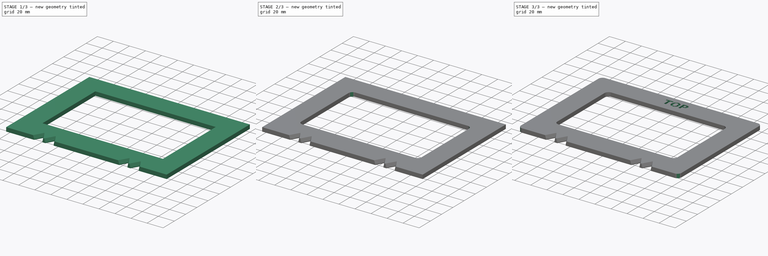
[diagram: build sequence overview — one tinted view per stage of 3, left to right]
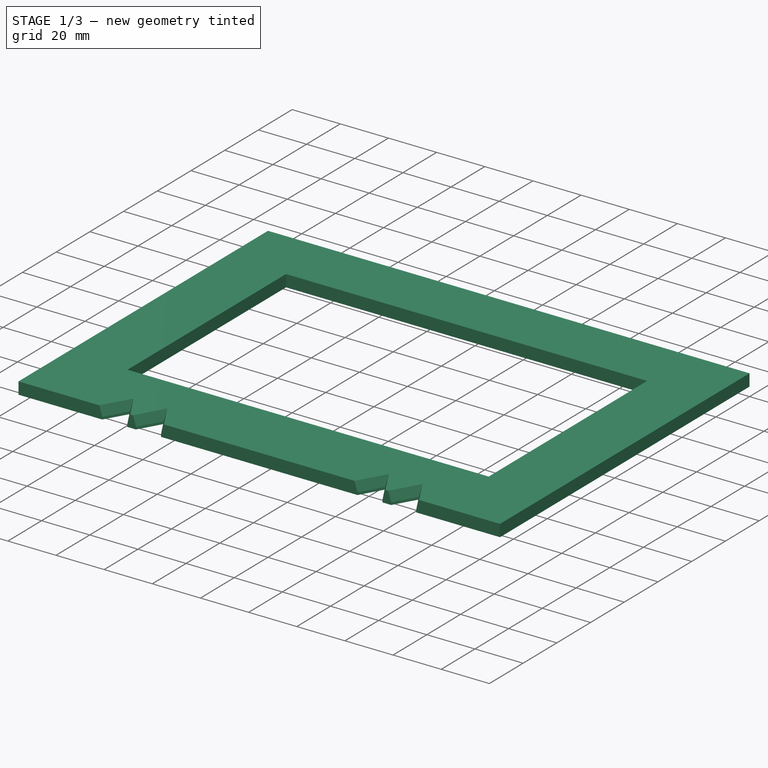
[diagram: stage 1 of 3 — iso view after this stage's code; geometry added in this stage tinted green]
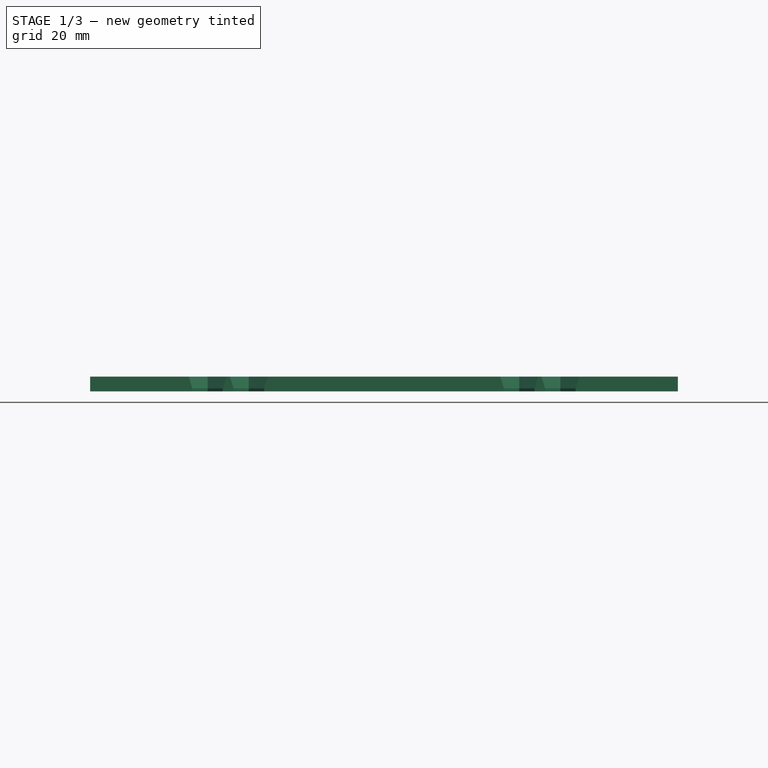
[diagram: stage 1 of 3 — front view after this stage's code; geometry added in this stage tinted green]
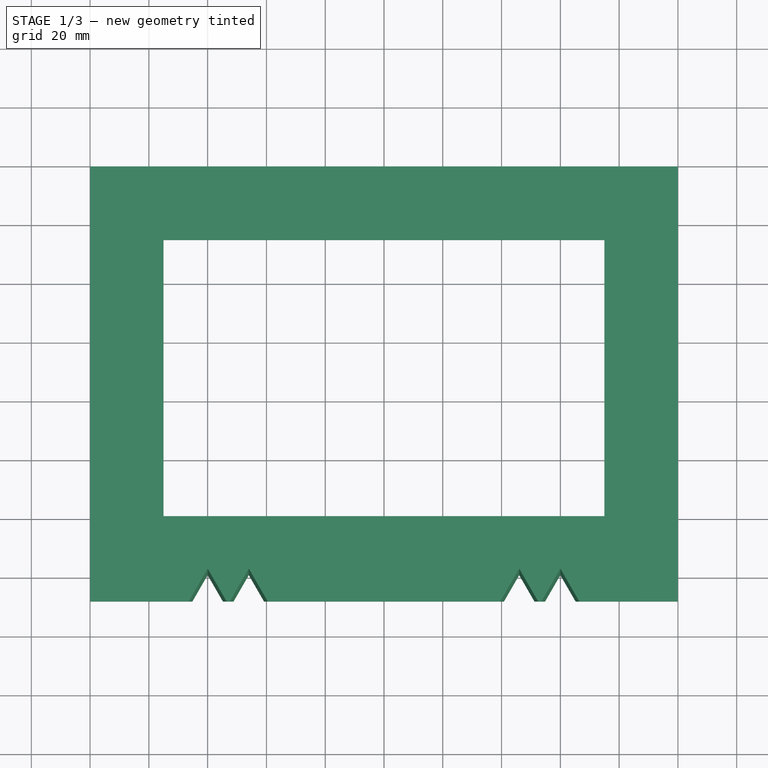
[diagram: stage 1 of 3 — top view after this stage's code; geometry added in this stage tinted green]
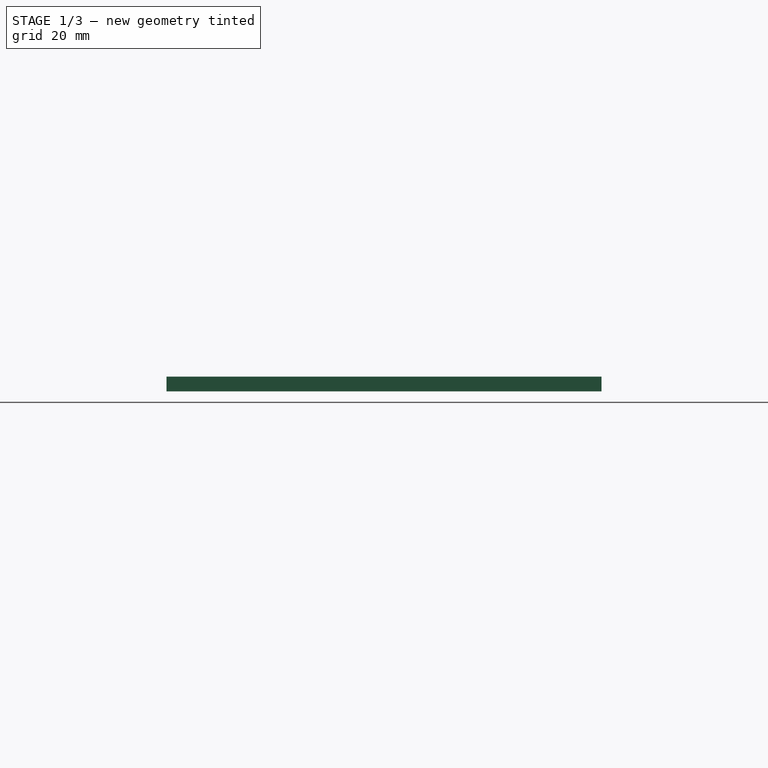
[diagram: stage 1 of 3 — right view after this stage's code; geometry added in this stage tinted green]
FCSTD DOCUMENT  (FreeCAD 0.19R24276 (Git))
Label: Radio brackets
License: All rights reserved
LicenseURL: http://en.wikipedia.org/wiki/All_rights_reserved
objects: PartDesign::Fillet×2, Sketcher::SketchObject×1, PartDesign::Pad×1, Part::Part2DObjectPython×1, PartDesign::Chamfer×1, PartDesign::ShapeBinder×1, PartDesign::Pocket×1, PartDesign::Body×1
note: 14 computed .brp shape members not serialized (recipe doc carries the construction recipe); baked Part::Feature solids carry a one-line shape summary decoded from their .brp

FEATURE [Sketcher::SketchObject] Sketch
  FullyConstrained = true
  MapMode = 5
  Support = -> [XY_Plane]
  sketch-geometry (20):
    g0: LineSegment StartX=0 StartY=0 StartZ=0 EndX=200 EndY=0 EndZ=0
    g1: LineSegment StartX=200 StartY=0 StartZ=0 EndX=200 EndY=-148 EndZ=0
    g2: LineSegment StartX=59.1962 StartY=-148 StartZ=0 EndX=54 EndY=-139 EndZ=0
    g3: LineSegment StartX=54 StartY=-139 StartZ=0 EndX=48.8038 EndY=-148 EndZ=0
    g4: LineSegment StartX=48.8038 StartY=-148 StartZ=0 EndX=45.1962 EndY=-148 EndZ=0
    g5: LineSegment StartX=45.1962 StartY=-148 StartZ=0 EndX=40 EndY=-139 EndZ=0
    g6: LineSegment StartX=40 StartY=-139 StartZ=0 EndX=34.8038 EndY=-148 EndZ=0
    g7: LineSegment StartX=34.8038 StartY=-148 StartZ=0 EndX=0 EndY=-148 EndZ=0
    g8: LineSegment StartX=0 StartY=-148 StartZ=0 EndX=0 EndY=0 EndZ=0
    g9: LineSegment StartX=165.196 StartY=-148 StartZ=0 EndX=160 EndY=-139 EndZ=0
    g10: LineSegment StartX=160 StartY=-139 StartZ=0 EndX=154.804 EndY=-148 EndZ=0
    g11: LineSegment StartX=154.804 StartY=-148 StartZ=0 EndX=151.196 EndY=-148 EndZ=0
    g12: LineSegment StartX=151.196 StartY=-148 StartZ=0 EndX=146 EndY=-139 EndZ=0
    g13: LineSegment StartX=146 StartY=-139 StartZ=0 EndX=140.804 EndY=-148 EndZ=0
    g14: LineSegment StartX=140.804 StartY=-148 StartZ=0 EndX=59.1962 EndY=-148 EndZ=0
    g15: LineSegment StartX=165.196 StartY=-148 StartZ=0 EndX=200 EndY=-148 EndZ=0
    g16: LineSegment StartX=25 StartY=-25 StartZ=0 EndX=175 EndY=-25 EndZ=0
    g17: LineSegment StartX=175 StartY=-25 StartZ=0 EndX=175 EndY=-119 EndZ=0
    g18: LineSegment StartX=175 StartY=-119 StartZ=0 EndX=25 EndY=-119 EndZ=0
    g19: LineSegment StartX=25 StartY=-119 StartZ=0 EndX=25 EndY=-25 EndZ=0
  constraints (59):
    c: Coincident(g-1,g0)
    c: PointOnObject(g0,g-1)
    c: Coincident(g0,g1)
    c: Vertical(g1)
    c: Coincident(g2,g3)
    c: Coincident(g3,g4)
    c: Horizontal(g4)
    c: Coincident(g4,g5)
    c: Coincident(g5,g6)
    c: Coincident(g6,g7)
    c: PointOnObject(g7,g-2)
    c: Horizontal(g7)
    c: Coincident(g7,g8)
    c: Coincident(g8,g0)
    c: Horizontal(g6,g4)
    c: Horizontal(g4,g2)
    c: Horizontal(g5,g2)
    c: DistanceX(g7,g5) = 40
    c: Angle(g6,g5) = 1.0472
    c: Angle(g3,g2) = 1.0472
    c: Equal(g6,g5)
    c: Equal(g5,g3)
    c: DistanceY(g5,g0) = 139
    c: DistanceY(g7,g5) = 9
    c: Coincident(g9,g10)
    c: Coincident(g10,g11)
    c: Horizontal(g11)
    c: Coincident(g11,g12)
    c: Coincident(g12,g13)
    c: Coincident(g13,g14)
    c: Horizontal(g14)
    c: Horizontal(g13,g11)
    c: Horizontal(g11,g9)
    c: Horizontal(g12,g9)
    c: Angle(g13,g12) = 1.0472
    c: Angle(g10,g9) = 1.0472
    c: Equal(g13,g12)
    c: Equal(g12,g10)
    c: Coincident(g14,g2)
    c: Horizontal(g12,g2)
    c: DistanceX(g7,g2) = 54
    c: DistanceX(g7,g9) = 160
    c: DistanceX(g7,g12) = 146
    c: Coincident(g15,g9)
    c: Coincident(g15,g1)
    c: Horizontal(g15)
    c: DistanceX(g9,g1) = 40
    c: Coincident(g16,g17)
    c: Coincident(g17,g18)
    c: Coincident(g18,g19)
    c: Coincident(g19,g16)
    c: Horizontal(g16)
    c: Horizontal(g18)
    c: Vertical(g17)
    c: Vertical(g19)
    c: DistanceX(g0,g16) = 25
    c: DistanceX(g16,g0) = 25
    c: DistanceY(g16,g0) = 25
    c: DistanceY(g9,g17) = 20
FEATURE [PartDesign::Pad] Pad
  Direction = (1,1,1)
  Length = 5
  Length2 = 100
  Profile = -> Sketch
  Type = 0
FEATURE [Part::Part2DObjectPython] ShapeString  # Draft 2D object (typed FeaturePython)
  FontFile = <path>
  Placement = pos=(86,-16,6) rot=(0,0,1;0rad)
  Size = 10
  String = TOP
  Tracking = 0
FEATURE [PartDesign::Chamfer] Chamfer
  Angle = 15
  Base = -> Pad [Edge34,Edge31,Edge25,Edge22,Edge16,Edge13,Edge7,Edge4]
  BaseFeature = -> Pad
  ChamferType = 2
  FlipDirection = false
  Size = 4
  Size2 = 1
  SupportTransform = false
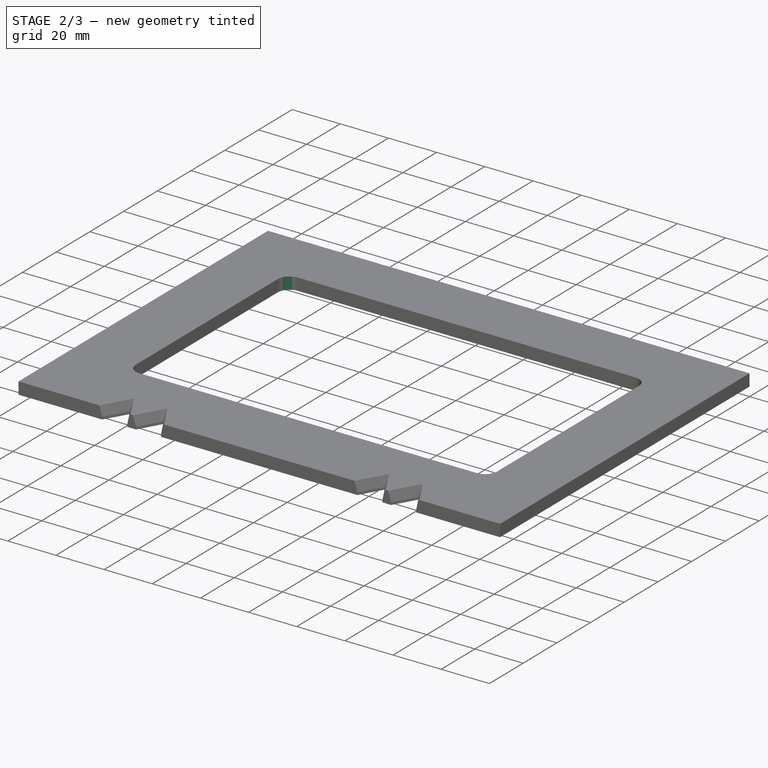
[diagram: stage 2 of 3 — iso view after this stage's code; geometry added in this stage tinted green]
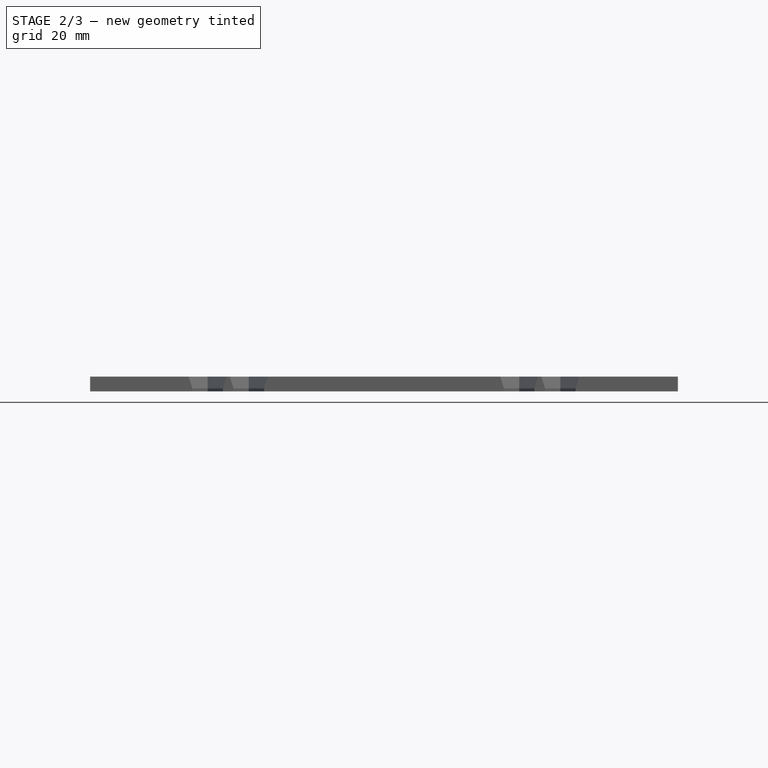
[diagram: stage 2 of 3 — front view after this stage's code; geometry added in this stage tinted green]
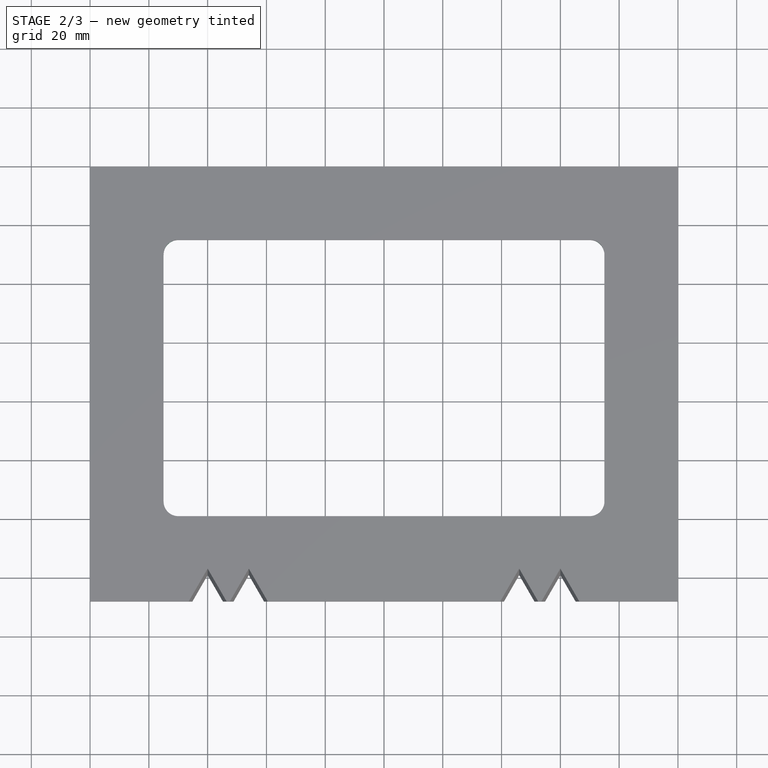
[diagram: stage 2 of 3 — top view after this stage's code; geometry added in this stage tinted green]
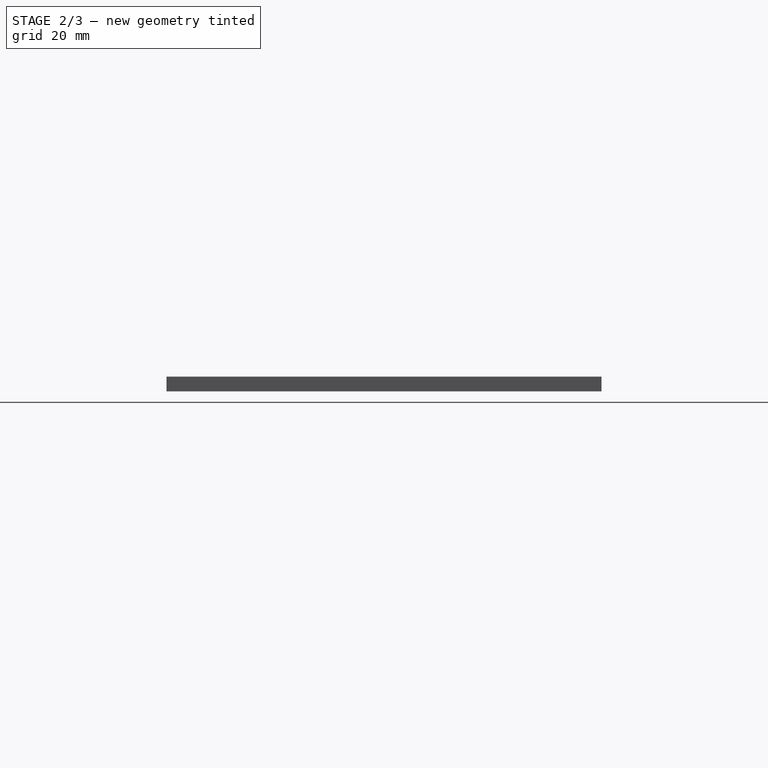
[diagram: stage 2 of 3 — right view after this stage's code; geometry added in this stage tinted green]
FEATURE [PartDesign::Fillet] Fillet
  Base = -> Chamfer [Edge75,Edge76,Edge77,Edge74]
  BaseFeature = -> Chamfer
  Radius = 5
  SupportTransform = false
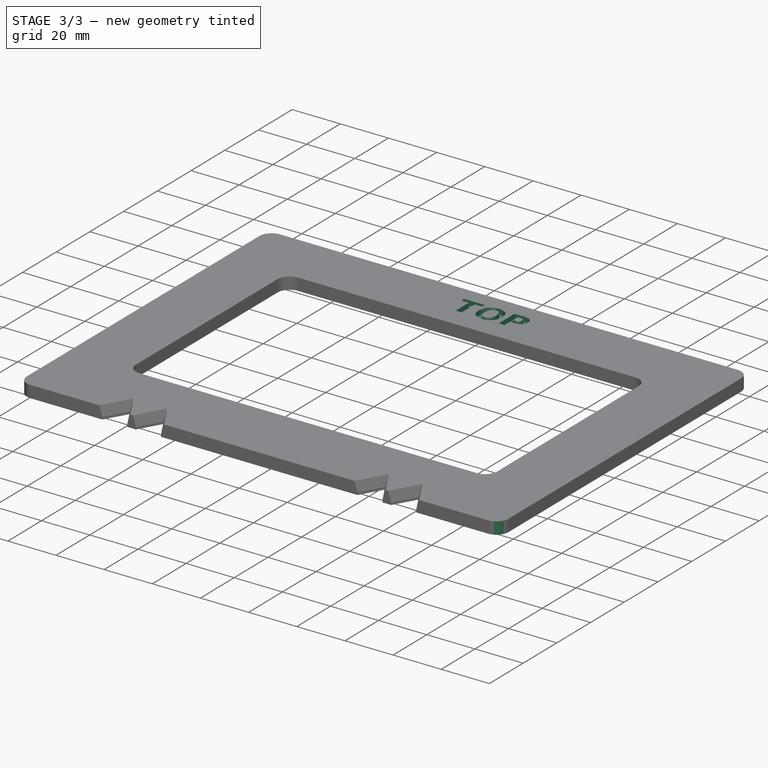
[diagram: stage 3 of 3 — iso view after this stage's code; geometry added in this stage tinted green]
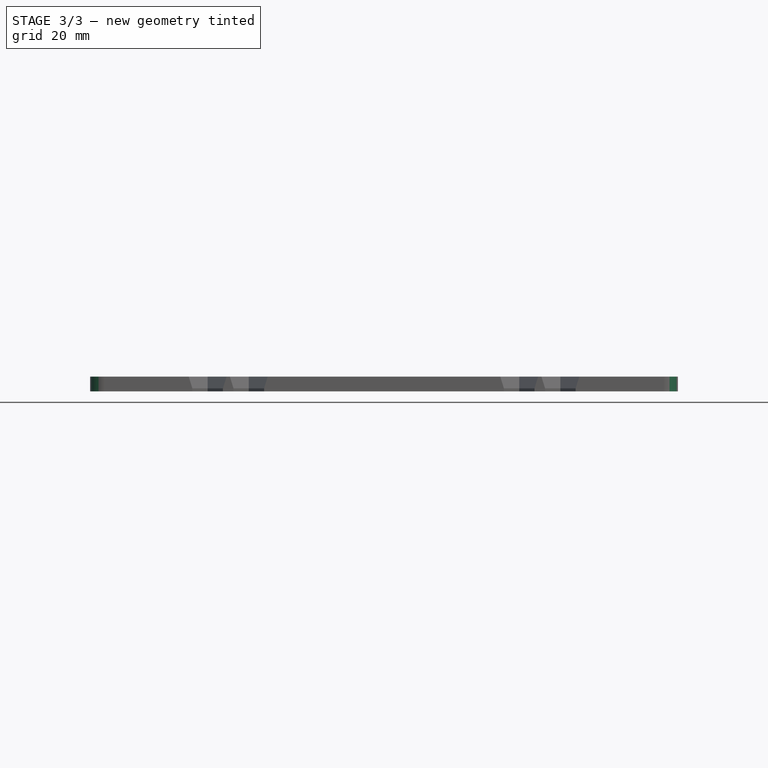
[diagram: stage 3 of 3 — front view after this stage's code; geometry added in this stage tinted green]
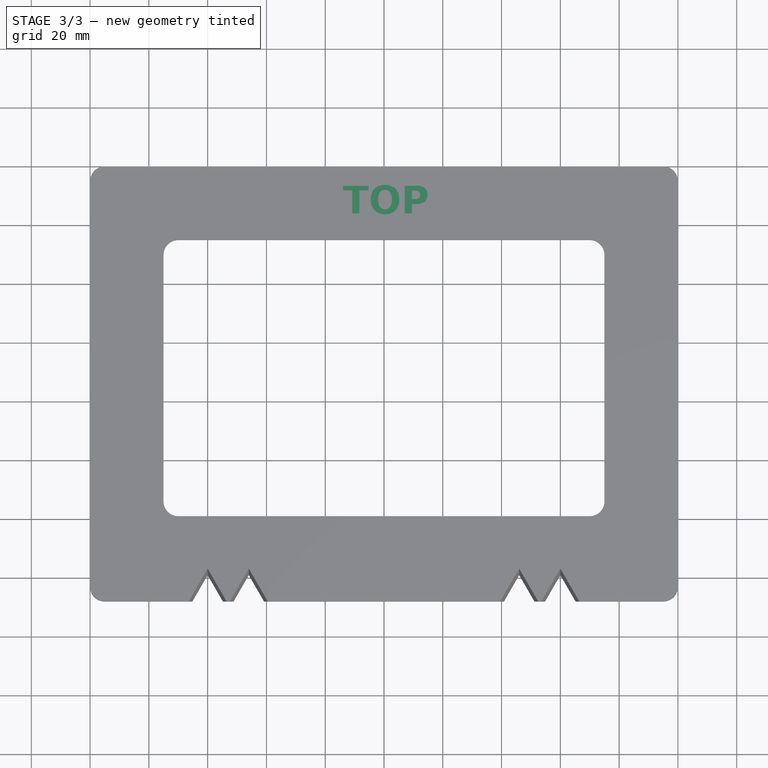
[diagram: stage 3 of 3 — top view after this stage's code; geometry added in this stage tinted green]
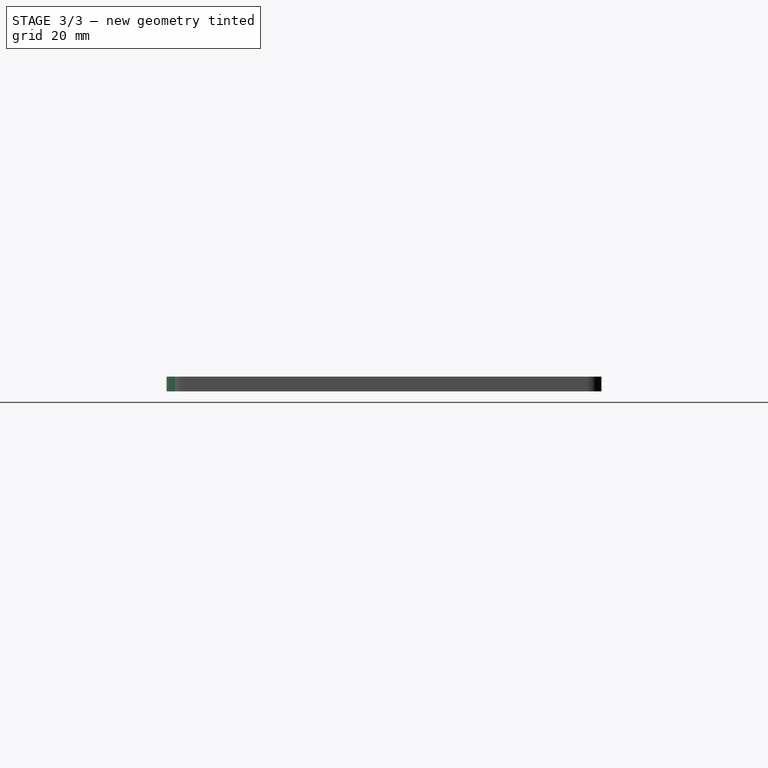
[diagram: stage 3 of 3 — right view after this stage's code; geometry added in this stage tinted green]
FEATURE [PartDesign::Fillet] Fillet001
  Base = -> Fillet [Edge75,Edge73,Edge77,Edge72]
  BaseFeature = -> Fillet
  Radius = 5
  SupportTransform = false
FEATURE [PartDesign::ShapeBinder] ShapeBinder
  Placement = pos=(86,-16,6) rot=(0,0,1;0rad)
  Support = -> [ShapeString]
  TraceSupport = false
FEATURE [PartDesign::Pocket] Pocket
  BaseFeature = -> Fillet001
  Length = 3
  Length2 = 100
  Profile = -> ShapeBinder
  Type = 0
FEATURE [PartDesign::Body] Body
  Group = -> [Sketch,Pad,Chamfer,Fillet,Fillet001,ShapeBinder,Pocket]
  Origin = -> Origin
  Tip = -> Pocket
note: 1 file-system path scrubbed to <path> (originals preserved in the JSON sidecar)
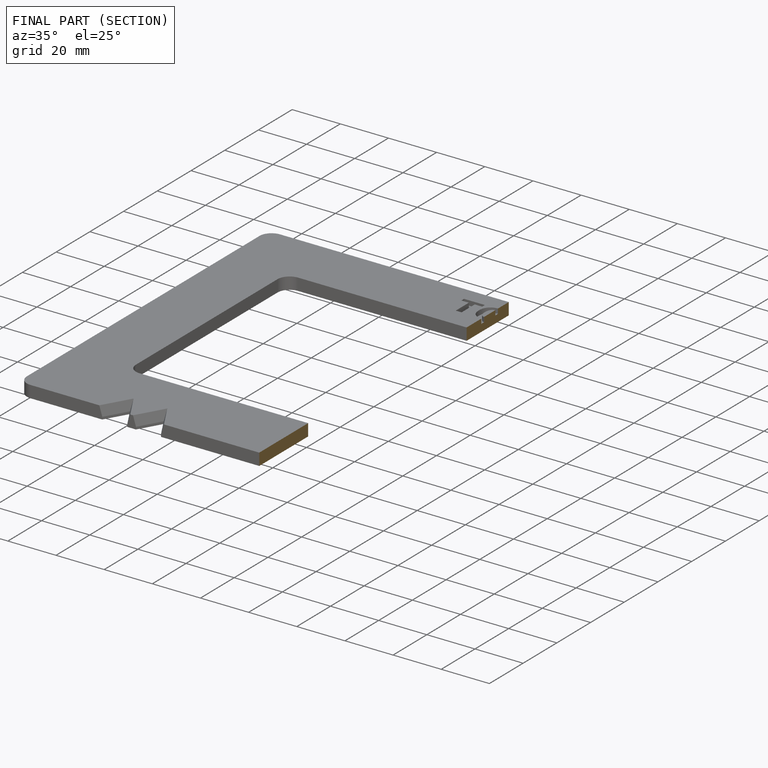
[diagram: finished part — half-section view (interior)]
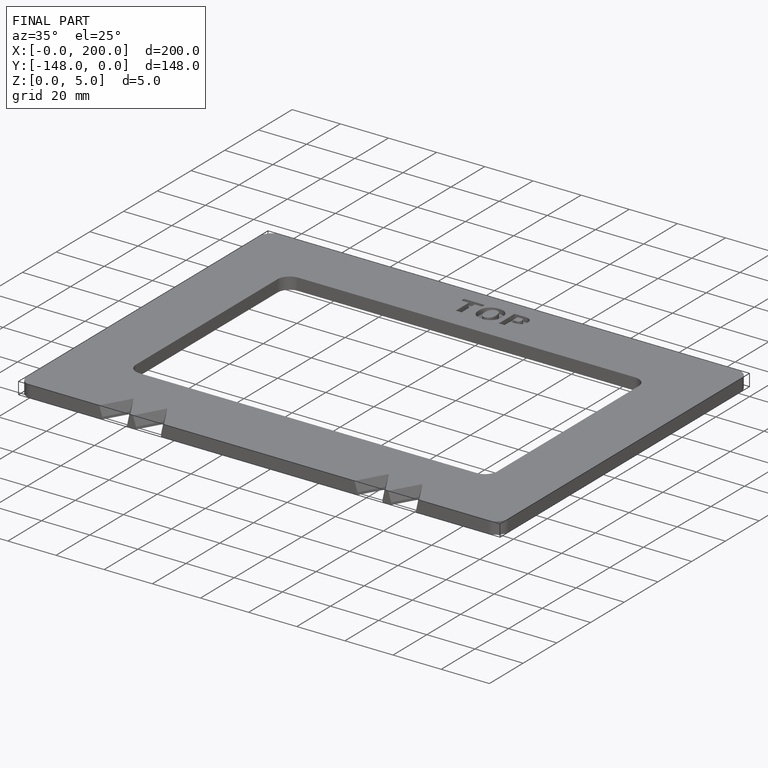
[diagram: finished part — iso view with bounding-box wireframe]
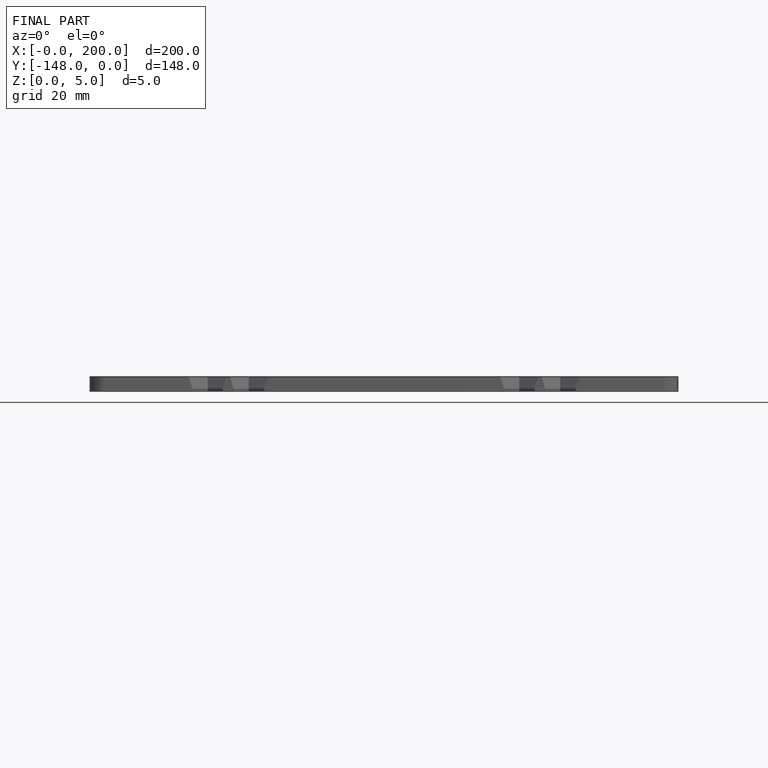
[diagram: finished part — front view with bounding-box wireframe]
